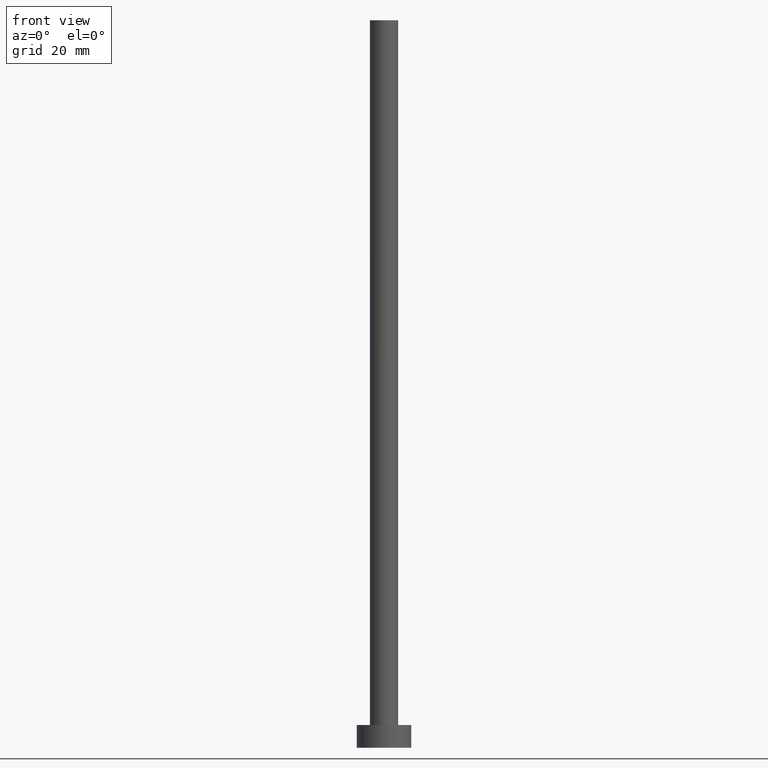
[diagram: clean part render]
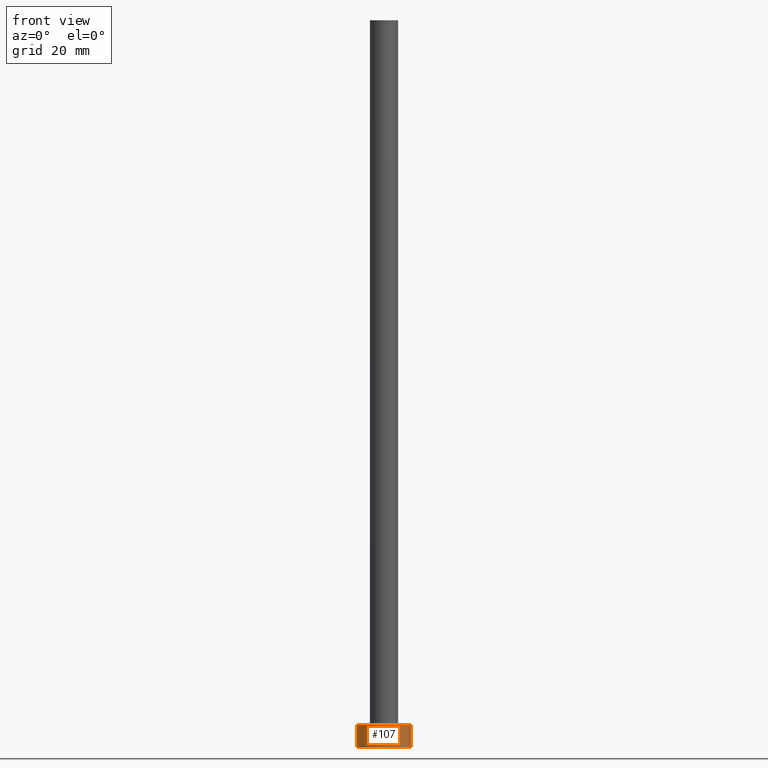
[diagram: same view with one face highlighted and labeled with its STEP entity id]
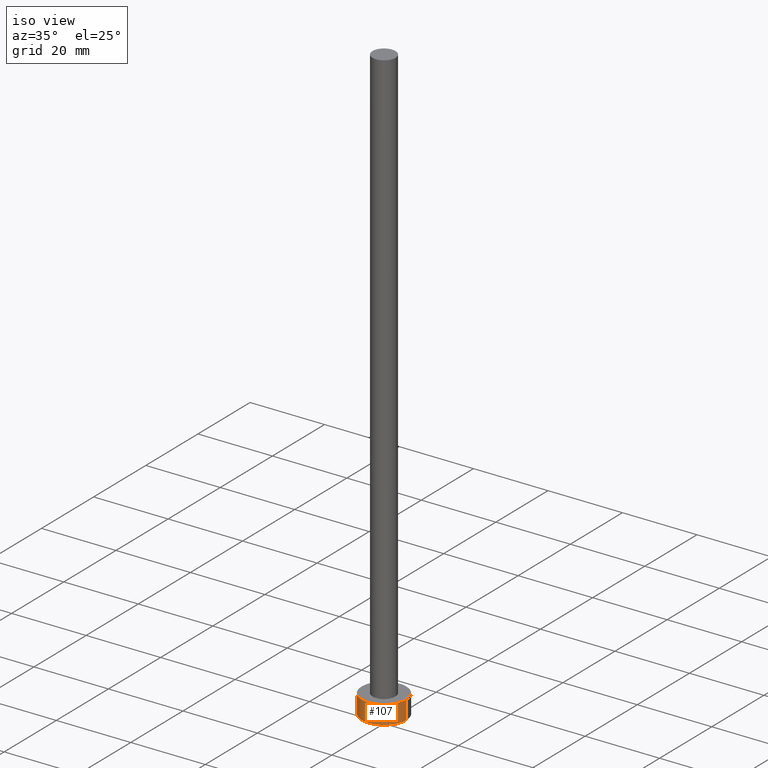
[diagram: same view with one face highlighted and labeled with its STEP entity id]
A machine part, front view. The second image highlights one B-rep face of the part: STEP entity #107.
A second angle (iso view) of the same face is appended — the face is thin or edge-on in the first view.
In plain terms, the highlighted cylindrical surface (edge-blend (fillet) strip) has radius 6 mm, axis along (-0, -0, -1).
Its self-contained STEP definition (entity closure, byte-faithful):
#3 = CARTESIAN_POINT ( 'NONE',  ( -6.000000000000000888, 0.000000000000000000, 5.000000000000000000 ) ) ;
#4 = EDGE_CURVE ( 'NONE', #174, #169, #194, .T. ) ;
#11 = DIRECTION ( 'NONE',  ( 1.000000000000000000, 0.000000000000000000, 0.000000000000000000 ) ) ;
#13 = DIRECTION ( 'NONE',  ( -0.000000000000000000, -0.000000000000000000, -1.000000000000000000 ) ) ;
#16 = EDGE_CURVE ( 'NONE', #201, #232, #98, .T. ) ;
#17 = EDGE_LOOP ( 'NONE', ( #238, #125, #25, #85 ) ) ;
#19 = EDGE_CURVE ( 'NONE', #201, #174, #81, .T. ) ;
#25 = ORIENTED_EDGE ( 'NONE', *, *, #16, .T. ) ;
#39 = DIRECTION ( 'NONE',  ( 0.000000000000000000, 0.000000000000000000, 1.000000000000000000 ) ) ;
#61 = AXIS2_PLACEMENT_3D ( 'NONE', #132, #39, #150 ) ;
#63 = FACE_OUTER_BOUND ( 'NONE', #17, .T. ) ;
#73 = AXIS2_PLACEMENT_3D ( 'NONE', #112, #213, #11 ) ;
#74 = EDGE_CURVE ( 'NONE', #232, #169, #77, .T. ) ;
#75 = CARTESIAN_POINT ( 'NONE',  ( 0.000000000000000000, 0.000000000000000000, 5.000000000000000000 ) ) ;
#77 = CIRCLE ( 'NONE', #73, 6.000000000000000888 ) ;
#79 = DIRECTION ( 'NONE',  ( -0.000000000000000000, -0.000000000000000000, -1.000000000000000000 ) ) ;
#81 = CIRCLE ( 'NONE', #61, 6.000000000000000888 ) ;
#85 = ORIENTED_EDGE ( 'NONE', *, *, #74, .T. ) ;
#98 = LINE ( 'NONE', #214, #192 ) ;
#99 = CARTESIAN_POINT ( 'NONE',  ( 6.000000000000000888, 7.347880794884120722E-16, 5.000000000000000000 ) ) ;
#106 = CARTESIAN_POINT ( 'NONE',  ( -6.000000000000000888, 0.000000000000000000, 0.000000000000000000 ) ) ;
#107 = ADVANCED_FACE ( 'NONE', ( #63 ), #172, .T. ) ;
#112 = CARTESIAN_POINT ( 'NONE',  ( 0.000000000000000000, 0.000000000000000000, 0.000000000000000000 ) ) ;
#125 = ORIENTED_EDGE ( 'NONE', *, *, #19, .F. ) ;
#132 = CARTESIAN_POINT ( 'NONE',  ( 0.000000000000000000, 0.000000000000000000, 5.000000000000000000 ) ) ;
#135 = VECTOR ( 'NONE', #13, 1000.000000000000000 ) ;
#140 = DIRECTION ( 'NONE',  ( -1.000000000000000000, 0.000000000000000000, 0.000000000000000000 ) ) ;
#142 = CARTESIAN_POINT ( 'NONE',  ( 6.000000000000000888, 7.347880794884120722E-16, 0.000000000000000000 ) ) ;
#150 = DIRECTION ( 'NONE',  ( 1.000000000000000000, 0.000000000000000000, 0.000000000000000000 ) ) ;
#169 = VERTEX_POINT ( 'NONE', #142 ) ;
#172 = CYLINDRICAL_SURFACE ( 'NONE', #206, 6.000000000000000888 ) ;
#174 = VERTEX_POINT ( 'NONE', #99 ) ;
#177 = CARTESIAN_POINT ( 'NONE',  ( 6.000000000000000888, 7.347880794884120722E-16, 5.000000000000000000 ) ) ;
#192 = VECTOR ( 'NONE', #79, 1000.000000000000000 ) ;
#194 = LINE ( 'NONE', #177, #135 ) ;
#201 = VERTEX_POINT ( 'NONE', #3 ) ;
#206 = AXIS2_PLACEMENT_3D ( 'NONE', #75, #231, #140 ) ;
#213 = DIRECTION ( 'NONE',  ( 0.000000000000000000, 0.000000000000000000, 1.000000000000000000 ) ) ;
#214 = CARTESIAN_POINT ( 'NONE',  ( -6.000000000000000888, 0.000000000000000000, 5.000000000000000000 ) ) ;
#231 = DIRECTION ( 'NONE',  ( -0.000000000000000000, -0.000000000000000000, -1.000000000000000000 ) ) ;
#232 = VERTEX_POINT ( 'NONE', #106 ) ;
#238 = ORIENTED_EDGE ( 'NONE', *, *, #4, .F. ) ;